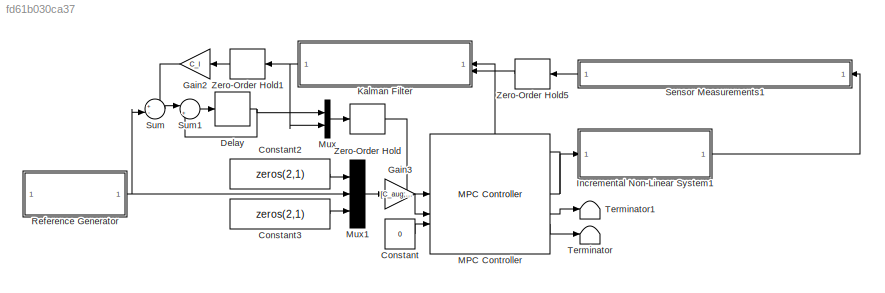
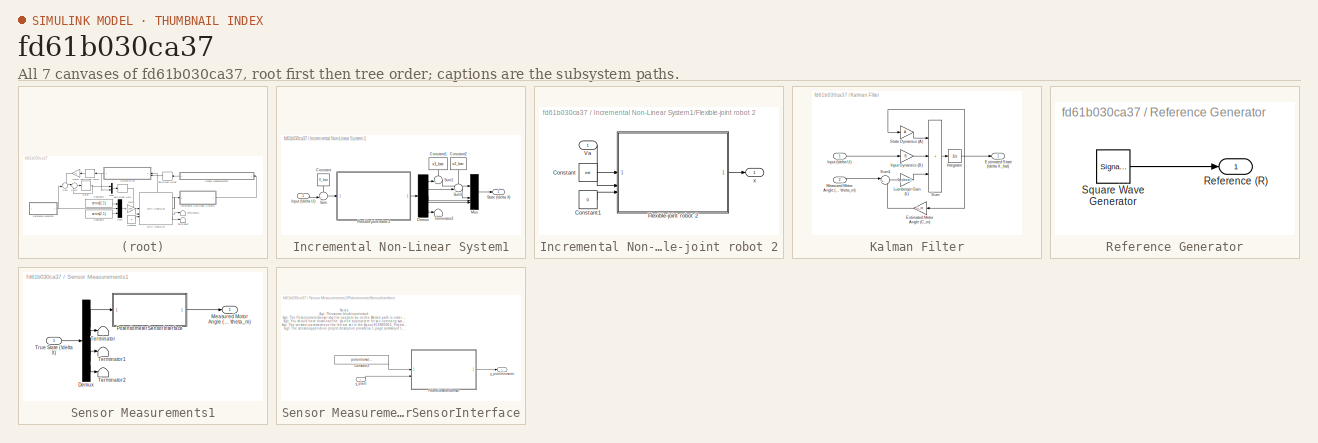
[diagram: thumbnail index - all 7 canvases of the model, root first then tree order]
MODEL slx_fd61b030ca37
KIND model
CONFIG AbsTol = auto
CONFIG EnableMultiTasking = off
CONFIG FixedStep = auto
CONFIG MaxStep = auto
CONFIG MinStep = auto
CONFIG RelTol = 1e-3
CONFIG SampleTimeConstraint = Unconstrained
CONFIG SolverName = VariableStepAuto
CONFIG StartTime = 0.0
CONFIG StopTime = 21
BLOCK [Constant] Constant
  Value = 0
BLOCK [Constant] Constant2
  Value = zeros(2,1)
BLOCK [Constant] Constant3
  Value = zeros(2,1)
BLOCK [Delay] Delay
  DelayLength = 1
  InputPortMap = u0
  SampleTime = min_sampling_time
BLOCK [Gain] Gain2
  Gain = C_l
  Multiplication = Matrix(K*u)
  NameLocation = top
BLOCK [Gain] Gain3
  Gain = [C_aug; sqrtm(Q); sqrtm(P)]
  Multiplication = Matrix(K*u)
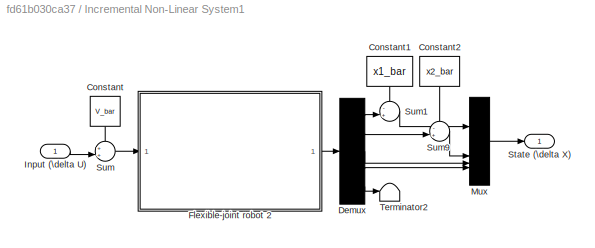
BLOCK [SubSystem] Incremental Non-Linear System1
BLOCK [Constant] Incremental Non-Linear System1/Constant
  NameLocation = left
  Value = V_bar
BLOCK [Constant] Incremental Non-Linear System1/Constant1
  NameLocation = left
  Value = x1_bar
BLOCK [Constant] Incremental Non-Linear System1/Constant2
  NameLocation = left
  Value = x2_bar
BLOCK [Demux] Incremental Non-Linear System1/Demux
  Outputs = 5
BLOCK [SubSystem] Incremental Non-Linear System1/Flexible-joint robot 2
BLOCK [Constant] Incremental Non-Linear System1/Flexible-joint robot 2/Constant
  Value = init
BLOCK [Constant] Incremental Non-Linear System1/Flexible-joint robot 2/Constant1
  Value = 0
BLOCK [ModelReference] Incremental Non-Linear System1/Flexible-joint robot 2/Flexible-joint robot 2
  CopyOfModelProtected = on
  ModelNameDialog = Flexible_joint_robot_2
  ModelReferenceVersion = 1.65
BLOCK [Inport] Incremental Non-Linear System1/Flexible-joint robot 2/Va
BLOCK [Outport] Incremental Non-Linear System1/Flexible-joint robot 2/x
BLOCK [Inport] Incremental Non-Linear System1/Input (\delta U)
BLOCK [Mux] Incremental Non-Linear System1/Mux
  DisplayOption = bar
BLOCK [Outport] Incremental Non-Linear System1/State (\delta X)
BLOCK [Sum] Incremental Non-Linear System1/Sum
  Inputs = ++|
BLOCK [Sum] Incremental Non-Linear System1/Sum1
  Inputs = -+|
BLOCK [Sum] Incremental Non-Linear System1/Sum9
  Inputs = -+|
BLOCK [Terminator] Incremental Non-Linear System1/Terminator2
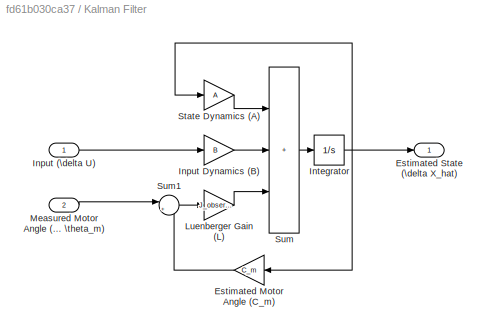
BLOCK [SubSystem] Kalman Filter
  NameLocation = top
BLOCK [Gain] Kalman Filter/Estimated Motor Angle (C_m)
  Gain = C_m
  Multiplication = Matrix(K*u)
  NameLocation = top
BLOCK [Outport] Kalman Filter/Estimated State (\delta X_hat)
BLOCK [Inport] Kalman Filter/Input (\delta U)
BLOCK [Gain] Kalman Filter/Input Dynamics (B)
  Gain = B
  Multiplication = Matrix(K*u)
BLOCK [Integrator] Kalman Filter/Integrator
BLOCK [Gain] Kalman Filter/Luenberger Gain (L)
  Gain = J_observer
  Multiplication = Matrix(K*u)
BLOCK [Inport] Kalman Filter/Measured Motor Angle (\delta \theta_m)
  Port = 2
BLOCK [Gain] Kalman Filter/State Dynamics (A)
  Gain = A
  Multiplication = Matrix(K*u)
BLOCK [Sum] Kalman Filter/Sum
  IconShape = rectangular
  Inputs = +++
BLOCK [Sum] Kalman Filter/Sum1
  Inputs = |+-
BLOCK [Reference] MPC Controller  REF=mpclib/MPC Controller  (lib defined in mdl_ae329e0e0455)
  SCDEnableBlockLinearizationSpecification = on
  SourceBlock = mpclib/MPC Controller
  SourceType = MPC
BLOCK [Mux] Mux
  DisplayOption = bar
  Inputs = 2
BLOCK [Mux] Mux1
  DisplayOption = bar
  Inputs = 3
BLOCK [SubSystem] Reference Generator
BLOCK [Outport] Reference Generator/Reference (R)
BLOCK [SignalGenerator] Reference Generator/Square Wave Generator
  Amplitude = wave_amplitude
  Frequency = 1 / wave_period
  WaveForm = square
BLOCK [SubSystem] Sensor Measurements1
  NameLocation = top
BLOCK [Demux] Sensor Measurements1/Demux
BLOCK [Outport] Sensor Measurements1/Measured Motor Angle (\delta \theta_m)
BLOCK [SubSystem] Sensor Measurements1/PotentiometerSensorInterface
  TreatAsAtomicUnit = on
BLOCK [Constant] Sensor Measurements1/PotentiometerSensorInterface/Constant3
  Value = potentiometer_linearity_percent
BLOCK [ModelReference] Sensor Measurements1/PotentiometerSensorInterface/PotentiometerSensor
  CopyOfModelProtected = on
  ModelNameDialog = PotentiometerSensor.slxp
  ModelReferenceVersion = 1.21
BLOCK [Inport] Sensor Measurements1/PotentiometerSensorInterface/y_plant
BLOCK [Outport] Sensor Measurements1/PotentiometerSensorInterface/y_potentiometer
BLOCK [Terminator] Sensor Measurements1/Terminator
BLOCK [Terminator] Sensor Measurements1/Terminator1
BLOCK [Terminator] Sensor Measurements1/Terminator2
BLOCK [Inport] Sensor Measurements1/True State (\delta X)
BLOCK [Sum] Sum
  Inputs = +-|
BLOCK [Sum] Sum1
  Inputs = |++
BLOCK [Terminator] Terminator
BLOCK [Terminator] Terminator1
BLOCK [ZeroOrderHold] Zero-Order Hold
  SampleTime = -1
BLOCK [ZeroOrderHold] Zero-Order Hold1
  NameLocation = top
  SampleTime = min_sampling_time
BLOCK [ZeroOrderHold] Zero-Order Hold5
  NameLocation = top
  SampleTime = min_sampling_time
ANNOTATION Sensor Measurements1/PotentiometerSensorInterface: Notes: > This sensor block is protected. > The PotentiometerSensor.slxp file needs to be on the Matlab path in order to simulate this sensor. > You should have download the .slpx file appropriate for you operating system {Windows, Mac, Linux}. > The constant parameters on the left are set in the " ELEN90064_Project_Parameters.m " script. > The sensors appendix in project description provides a 1-p...<+188ch>
LINE Constant2:1 -> Mux1:1
LINE Constant3:1 -> Mux1:3
LINE Constant:1 -> MPC Controller:3
NET Delay:1 -> Mux:1, Sum1:2
LINE Gain2:1 -> Sum:1
LINE Gain3:1 -> MPC Controller:2
LINE Incremental Non-Linear System1/Constant1:1 -> Incremental Non-Linear System1/Sum1:1
LINE Incremental Non-Linear System1/Constant2:1 -> Incremental Non-Linear System1/Sum9:1
LINE Incremental Non-Linear System1/Constant:1 -> Incremental Non-Linear System1/Sum:1
LINE Incremental Non-Linear System1/Demux:1 -> Incremental Non-Linear System1/Sum1:2
LINE Incremental Non-Linear System1/Demux:2 -> Incremental Non-Linear System1/Sum9:2
LINE Incremental Non-Linear System1/Demux:3 -> Incremental Non-Linear System1/Mux:3
LINE Incremental Non-Linear System1/Demux:4 -> Incremental Non-Linear System1/Mux:4
LINE Incremental Non-Linear System1/Demux:5 -> Incremental Non-Linear System1/Terminator2:1
LINE Incremental Non-Linear System1/Flexible-joint robot 2/Constant1:1 -> Incremental Non-Linear System1/Flexible-joint robot 2/Flexible-joint robot 2:3
LINE Incremental Non-Linear System1/Flexible-joint robot 2/Constant:1 -> Incremental Non-Linear System1/Flexible-joint robot 2/Flexible-joint robot 2:2
LINE Incremental Non-Linear System1/Flexible-joint robot 2/Flexible-joint robot 2:1 -> Incremental Non-Linear System1/Flexible-joint robot 2/x:1
LINE Incremental Non-Linear System1/Flexible-joint robot 2/Va:1 -> Incremental Non-Linear System1/Flexible-joint robot 2/Flexible-joint robot 2:1
LINE Incremental Non-Linear System1/Flexible-joint robot 2:1 -> Incremental Non-Linear System1/Demux:1
LINE Incremental Non-Linear System1/Input (\delta U):1 -> Incremental Non-Linear System1/Sum:2
LINE Incremental Non-Linear System1/Mux:1 -> Incremental Non-Linear System1/State (\delta X):1
LINE Incremental Non-Linear System1/Sum1:1 -> Incremental Non-Linear System1/Mux:1
LINE Incremental Non-Linear System1/Sum9:1 -> Incremental Non-Linear System1/Mux:2
LINE Incremental Non-Linear System1/Sum:1 -> Incremental Non-Linear System1/Flexible-joint robot 2:1
LINE Incremental Non-Linear System1:1 -> Sensor Measurements1:1
LINE Kalman Filter/Estimated Motor Angle (C_m):1 -> Kalman Filter/Sum1:2
LINE Kalman Filter/Input (\delta U):1 -> Kalman Filter/Input Dynamics (B):1
LINE Kalman Filter/Input Dynamics (B):1 -> Kalman Filter/Sum:2
NET Kalman Filter/Integrator:1 -> Kalman Filter/Estimated Motor Angle (C_m):1, Kalman Filter/Estimated State (\delta X_hat):1, Kalman Filter/State Dynamics (A):1
LINE Kalman Filter/Luenberger Gain (L):1 -> Kalman Filter/Sum:3
LINE Kalman Filter/Measured Motor Angle (\delta \theta_m):1 -> Kalman Filter/Sum1:1
LINE Kalman Filter/State Dynamics (A):1 -> Kalman Filter/Sum:1
LINE Kalman Filter/Sum1:1 -> Kalman Filter/Luenberger Gain (L):1
LINE Kalman Filter/Sum:1 -> Kalman Filter/Integrator:1
NET Kalman Filter:1 -> Mux:2, Zero-Order Hold1:1
NET MPC Controller:1 -> Incremental Non-Linear System1:1, Kalman Filter:1
LINE MPC Controller:2 -> Terminator1:1
LINE MPC Controller:3 -> Terminator:1
LINE Mux1:1 -> Gain3:1
LINE Mux:1 -> Zero-Order Hold:1
LINE Reference Generator/Square Wave Generator:1 -> Reference Generator/Reference (R):1
NET Reference Generator:1 -> Mux1:2, Sum:2
LINE Sensor Measurements1/Demux:1 -> Sensor Measurements1/PotentiometerSensorInterface:1
LINE Sensor Measurements1/Demux:2 -> Sensor Measurements1/Terminator:1
LINE Sensor Measurements1/Demux:3 -> Sensor Measurements1/Terminator1:1
LINE Sensor Measurements1/Demux:4 -> Sensor Measurements1/Terminator2:1
LINE Sensor Measurements1/PotentiometerSensorInterface/Constant3:1 -> Sensor Measurements1/PotentiometerSensorInterface/PotentiometerSensor:1
LINE Sensor Measurements1/PotentiometerSensorInterface/PotentiometerSensor:1 -> Sensor Measurements1/PotentiometerSensorInterface/y_potentiometer:1
LINE Sensor Measurements1/PotentiometerSensorInterface/y_plant:1 -> Sensor Measurements1/PotentiometerSensorInterface/PotentiometerSensor:2
LINE Sensor Measurements1/PotentiometerSensorInterface:1 -> Sensor Measurements1/Measured Motor Angle (\delta \theta_m):1
LINE Sensor Measurements1/True State (\delta X):1 -> Sensor Measurements1/Demux:1
LINE Sensor Measurements1:1 -> Zero-Order Hold5:1
LINE Sum1:1 -> Delay:1
LINE Sum:1 -> Sum1:1
LINE Zero-Order Hold1:1 -> Gain2:1
LINE Zero-Order Hold5:1 -> Kalman Filter:2
LINE Zero-Order Hold:1 -> MPC Controller:1
note: NET lines group one-source signal fan-out (src -> all destinations, sorted); 1:1 wires keep LINE
